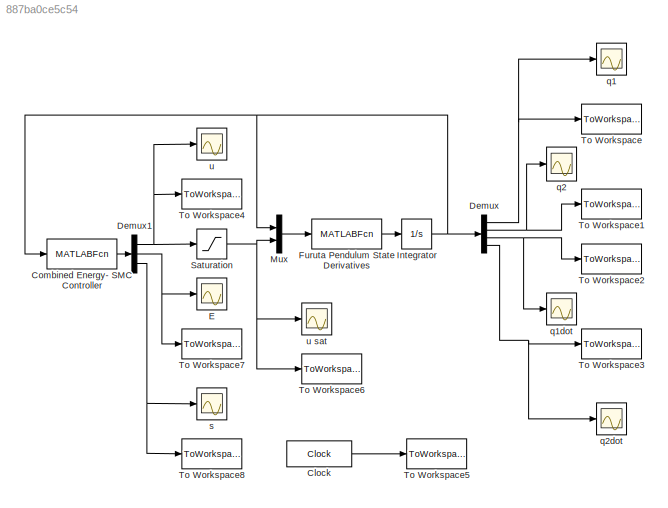
MODEL slx_887ba0ce5c54
KIND model
BLOCK [Clock] Clock
  DisplayTime = on
BLOCK [MATLABFcn] Combined Energy- SMC Controller
  MATLABFcn = energy_SMC_controller_sim(u)
  OutputDimensions = 3
  Ports = [1, 1]
BLOCK [Demux] Demux
  DisplayOption = bar
  Ports = [1, 4]
BLOCK [Demux] Demux1
  DisplayOption = bar
  Outputs = 3
  Ports = [1, 3]
BLOCK [Scope] E
  DataFormat = StructureWithTime
  Floating = off
  LimitDataPoints = off
  NumInputPorts = 1
  Ports = [1]
  SampleTime = 0
  SaveName = ScopeData3
  ShowLegends = off
  TimeRange = 2
  YMax = 1.38778e-17
  YMin = -0.25
  ZoomMode = yonly
BLOCK [MATLABFcn] Furuta Pendulum State Derivatives
  MATLABFcn = furuta_state_derivatives(u(1:4),u(5))
  Ports = [1, 1]
BLOCK [Integrator] Integrator
  InitialCondition = [0 pi 0 0]
  Ports = [1, 1]
BLOCK [Mux] Mux
  DisplayOption = bar
  Inputs = 2
  Ports = [2, 1]
BLOCK [Saturate] Saturation
  InputPortMap = u0
  LowerLimit = -4.5
  Ports = [1, 1]
  UpperLimit = 4.5
BLOCK [ToWorkspace] To Workspace
  MaxDataPoints = inf
  Ports = [1]
  SampleTime = -1
  VariableName = q1
BLOCK [ToWorkspace] To Workspace1
  MaxDataPoints = inf
  Ports = [1]
  SampleTime = -1
  VariableName = q2
BLOCK [ToWorkspace] To Workspace2
  MaxDataPoints = inf
  Ports = [1]
  SampleTime = -1
  VariableName = q1dot
BLOCK [ToWorkspace] To Workspace3
  MaxDataPoints = inf
  Ports = [1]
  SampleTime = -1
  VariableName = q2dot
BLOCK [ToWorkspace] To Workspace4
  MaxDataPoints = inf
  Ports = [1]
  SampleTime = -1
  VariableName = u
BLOCK [ToWorkspace] To Workspace5
  MaxDataPoints = inf
  Ports = [1]
  SampleTime = -1
  VariableName = t
BLOCK [ToWorkspace] To Workspace6
  MaxDataPoints = inf
  Ports = [1]
  SampleTime = -1
  VariableName = u_sat
BLOCK [ToWorkspace] To Workspace7
  MaxDataPoints = inf
  Ports = [1]
  SampleTime = -1
  VariableName = E
BLOCK [ToWorkspace] To Workspace8
  MaxDataPoints = inf
  Ports = [1]
  SampleTime = -1
  VariableName = s
BLOCK [Scope] q1
  DataFormat = StructureWithTime
  Floating = off
  LimitDataPoints = off
  NumInputPorts = 1
  Ports = [1]
  SampleTime = 0
  SaveName = ScopeData1
  ShowLegends = off
  YMax = 1.1
  YMin = 0
  ZoomMode = yonly
BLOCK [Scope] q1dot
  DataFormat = StructureWithTime
  Floating = off
  LimitDataPoints = off
  NumInputPorts = 1
  Ports = [1]
  SampleTime = 0
  SaveName = ScopeData5
  ShowLegends = off
  YMax = 2
  YMin = -6
  ZoomMode = yonly
BLOCK [Scope] q2
  DataFormat = StructureWithTime
  Floating = off
  LimitDataPoints = off
  NumInputPorts = 1
  Ports = [1]
  SampleTime = 0
  SaveName = ScopeData2
  ShowLegends = off
  TimeRange = 5
  YMax = -1.31675e-09
  YMin = -1.32025e-09
  ZoomMode = yonly
BLOCK [Scope] q2dot
  DataFormat = StructureWithTime
  Floating = off
  LimitDataPoints = off
  NumInputPorts = 1
  Ports = [1]
  SampleTime = 0
  SaveName = ScopeData6
  ShowLegends = off
  YMax = 0.5
  YMin = -1
  ZoomMode = xonly
BLOCK [Scope] s
  DataFormat = StructureWithTime
  Floating = off
  LimitDataPoints = off
  NumInputPorts = 1
  Ports = [1]
  SampleTime = 0
  SaveName = ScopeData4
  ShowLegends = off
  YMax = 2.5
  YMin = -32.5
  ZoomMode = yonly
BLOCK [Scope] u
  DataFormat = StructureWithTime
  Floating = off
  LimitDataPoints = off
  NumInputPorts = 1
  Ports = [1]
  SampleTime = 0
  ShowLegends = off
  TimeRange = 20
  YMax = 175
  YMin = -100
  ZoomMode = yonly
BLOCK [Scope] u sat
  DataFormat = StructureWithTime
  Floating = off
  LimitDataPoints = off
  NumInputPorts = 1
  Ports = [1]
  SampleTime = 0
  SaveName = ScopeData7
  ShowLegends = off
  TimeRange = 20
  ZoomMode = yonly
LINE Clock:1 -> To Workspace5:1
LINE Combined Energy- SMC Controller:1 -> Demux1:1
NET Demux1:1 -> Saturation:1, To Workspace4:1, u:1
NET Demux1:2 -> E:1, To Workspace7:1
NET Demux1:3 -> To Workspace8:1, s:1
NET Demux:1 -> To Workspace:1, q1:1
NET Demux:2 -> To Workspace1:1, q2:1
NET Demux:3 -> To Workspace2:1, q1dot:1
NET Demux:4 -> To Workspace3:1, q2dot:1
LINE Furuta Pendulum State Derivatives:1 -> Integrator:1
NET Integrator:1 -> Combined Energy- SMC Controller:1, Demux:1, Mux:1
LINE Mux:1 -> Furuta Pendulum State Derivatives:1
NET Saturation:1 -> Mux:2, To Workspace6:1, u sat:1
note: NET lines group one-source signal fan-out (src -> all destinations, sorted); 1:1 wires keep LINE
